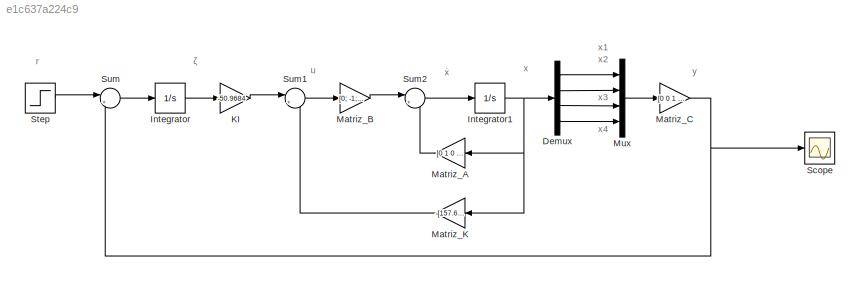
MODEL slx_e1c637a224c9
KIND model
CONFIG AbsTol = auto
CONFIG EnableMultiTasking = off
CONFIG FixedStep = auto
CONFIG MaxStep = auto
CONFIG MinStep = auto
CONFIG RelTol = 1e-3
CONFIG SampleTimeConstraint = Unconstrained
CONFIG SolverName = VariableStepAuto
CONFIG StartTime = 0.0
CONFIG StopTime = 10
BLOCK [Demux] Demux
  Ports = [1, 4]
BLOCK [Integrator] Integrator
  Ports = [1, 1]
BLOCK [Integrator] Integrator1
  Ports = [1, 1]
BLOCK [Gain] KI
  Gain = -50.9684
BLOCK [Gain] Matriz_A
  Gain = [0 1 0 0; 20.601 0 0 0; 0 0 0 1; -0.4905 0 0 0]
  Multiplication = Matrix(K*u)
BLOCK [Gain] Matriz_B
  Gain = [0; -1; 0; 0.5]
  Multiplication = Matrix(K*u)
BLOCK [Gain] Matriz_C
  Gain = [0 0 1 0]
  Multiplication = Matrix(K*u)
BLOCK [Gain] Matriz_K
  Gain = -[157.6336 35.3733 56.0652 36.7466]
  Multiplication = Matrix(K*u)
BLOCK [Mux] Mux
  DisplayOption = bar
  Ports = [4, 1]
BLOCK [Scope] Scope
  Floating = off
  NumInputPorts = 1
  Ports = [1]
  ScopeSpecificationString = Simulink.scopes.TimeScopeBlockCfg('CurrentConfiguration', extmgr.ConfigurationSet(extmgr.Configuration('Core','General UI',true,'FigureColor',[1 1 1]),extmgr.Configuration('Core','Source UI',true),extmgr.Configuration('Sources','WiredSimulink',true),extmgr.Configuration('Visuals','Time Domain',true,'SerializedDisplays',{struct('MinYLimReal','-0.18202','MaxYLimReal','1.29582','YLabelReal','','MinYL...<+1551ch>
BLOCK [Step] Step
  Before = 1
  SampleTime = 0
BLOCK [Sum] Sum
  Inputs = |+-
  Ports = [2, 1]
BLOCK [Sum] Sum1
  Inputs = |+-
  Ports = [2, 1]
BLOCK [Sum] Sum2
  Inputs = |++
  Ports = [2, 1]
ANNOTATION (root): ζ
ANNOTATION (root): ẋ
ANNOTATION (root): r
ANNOTATION (root): u
ANNOTATION (root): x
ANNOTATION (root): x1
ANNOTATION (root): x2
ANNOTATION (root): x3
ANNOTATION (root): x4
ANNOTATION (root): y
LINE Demux:1 -> Mux:1
LINE Demux:2 -> Mux:2
LINE Demux:3 -> Mux:3
LINE Demux:4 -> Mux:4
NET Integrator1:1 -> Demux:1, Matriz_A:1, Matriz_K:1
LINE Integrator:1 -> KI:1
LINE KI:1 -> Sum1:1
LINE Matriz_A:1 -> Sum2:2
LINE Matriz_B:1 -> Sum2:1
NET Matriz_C:1 -> Scope:1, Sum:2
LINE Matriz_K:1 -> Sum1:2
LINE Mux:1 -> Matriz_C:1
LINE Step:1 -> Sum:1
LINE Sum1:1 -> Matriz_B:1
LINE Sum2:1 -> Integrator1:1
LINE Sum:1 -> Integrator:1
note: NET lines group one-source signal fan-out (src -> all destinations, sorted); 1:1 wires keep LINE
